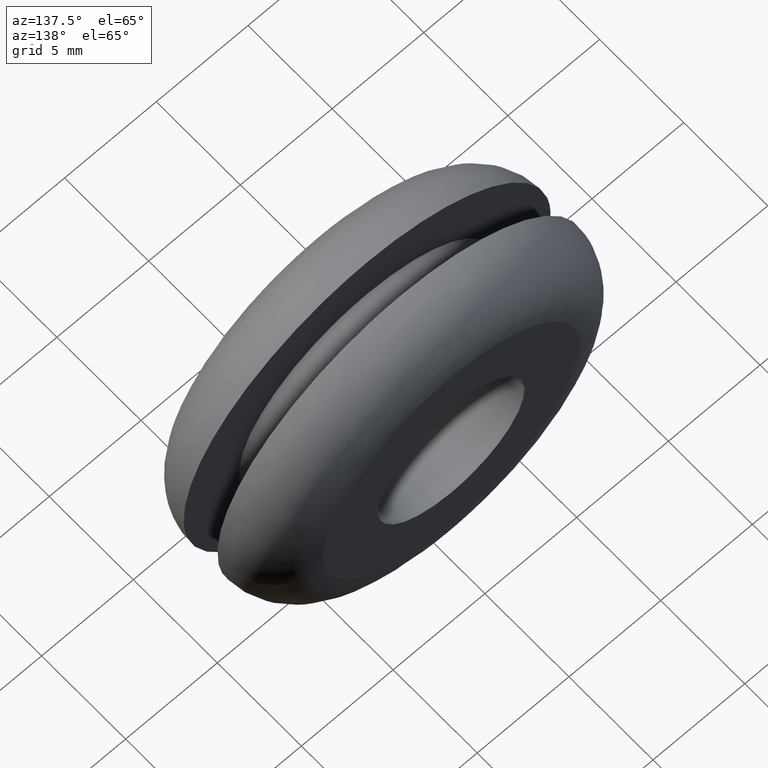
[diagram: clean part render]
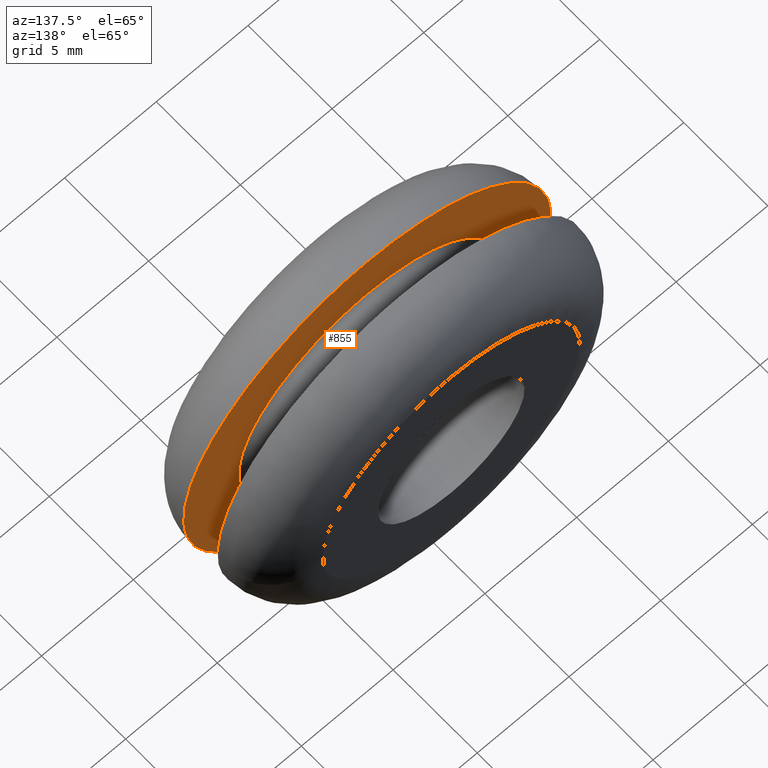
[diagram: same view with one face highlighted and labeled with its STEP entity id]
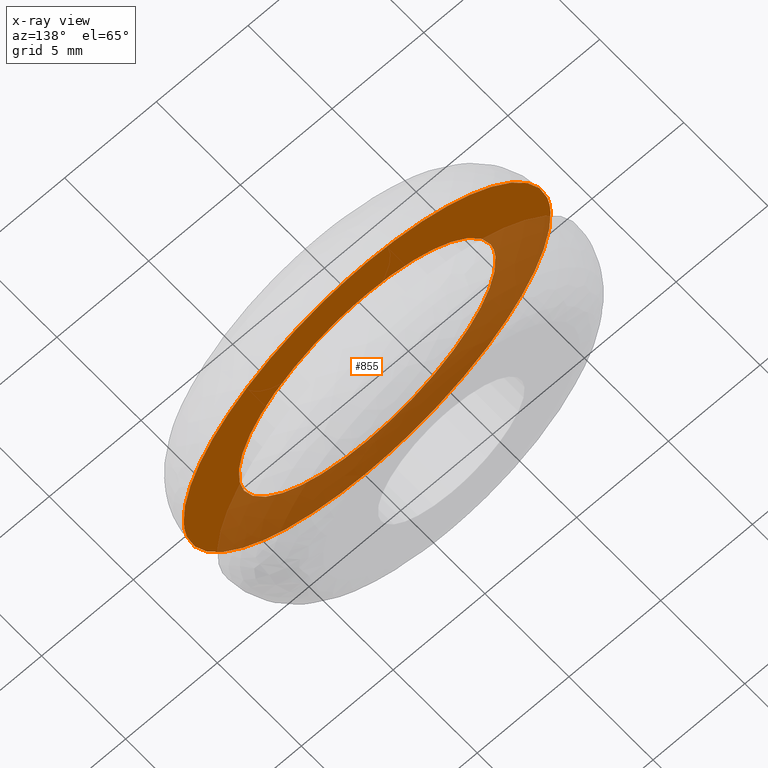
[diagram: x-ray of the same camera — body ghosted, the highlighted face saturated]
A machine part, auxiliary view. The second image highlights one B-rep face of the part: STEP entity #855.
The next image is the same camera in x-ray: the body ghosted, the highlighted face saturated — about 47% of this face is hidden behind the body in this view.
In plain terms, the highlighted face is a freeform B-spline surface patch.
Its self-contained STEP definition (entity closure, byte-faithful):
#66=CARTESIAN_POINT('',(6.951067166005178,2.999999999999949,-0.826235592109230));
#67=VERTEX_POINT('',#66);
#68=CARTESIAN_POINT('',(0.0,3.0,7.0));
#69=VERTEX_POINT('',#68);
#70=CARTESIAN_POINT('',(6.951067166005178,2.999999999999950,-0.826235592109230));
#71=CARTESIAN_POINT('',(7.0,3.000000000000000,-0.414566790908887));
#72=CARTESIAN_POINT('',(7.0,3.0,-1.836910E-016));
#73=CARTESIAN_POINT('',(6.999999999999999,3.000000000000000,6.999999999999999));
#74=CARTESIAN_POINT('',(0.0,3.0,7.0));
#82=(BOUNDED_CURVE()B_SPLINE_CURVE(2,(#70,#71,#72,#73,#74),.UNSPECIFIED.,.F.,.U.)B_SPLINE_CURVE_WITH_KNOTS((3,2,3),(0.229562571996310,0.250000000000000,0.500000000000000),.UNSPECIFIED.)CURVE()GEOMETRIC_REPRESENTATION_ITEM()RATIONAL_B_SPLINE_CURVE((0.956026947214111,0.976056063710924,1.0,0.707106781186547,1.0))REPRESENTATION_ITEM(''));
#83=EDGE_CURVE('',#67,#69,#82,.T.);
#124=CARTESIAN_POINT('',(-6.986943971456531,3.000000000000065,0.427333522775779));
#125=VERTEX_POINT('',#124);
#131=CARTESIAN_POINT('',(0.0,3.0,7.0));
#132=CARTESIAN_POINT('',(-6.584948373495934,2.999999999999999,6.999999999999999));
#133=CARTESIAN_POINT('',(-6.986943971456531,3.000000000000065,0.427333522775779));
#141=(BOUNDED_CURVE()B_SPLINE_CURVE(2,(#131,#132,#133),.UNSPECIFIED.,.F.,.U.)B_SPLINE_CURVE_WITH_KNOTS((3,3),(0.500000000000000,0.739333116687507),.UNSPECIFIED.)CURVE()GEOMETRIC_REPRESENTATION_ITEM()RATIONAL_B_SPLINE_CURVE((1.0,0.719603812338962,0.976072372679614))REPRESENTATION_ITEM(''));
#142=EDGE_CURVE('',#69,#125,#141,.T.);
#165=CARTESIAN_POINT('',(0.0,3.0,-7.0));
#166=VERTEX_POINT('',#165);
#167=CARTESIAN_POINT('',(0.0,3.0,-7.0));
#168=CARTESIAN_POINT('',(6.217225330029973,3.000000000000001,-6.999999999999999));
#169=CARTESIAN_POINT('',(6.951067166005178,2.999999999999950,-0.826235592109230));
#177=(BOUNDED_CURVE()B_SPLINE_CURVE(2,(#167,#168,#169),.UNSPECIFIED.,.F.,.U.)B_SPLINE_CURVE_WITH_KNOTS((3,3),(0.0,0.229562571996310),.UNSPECIFIED.)CURVE()GEOMETRIC_REPRESENTATION_ITEM()RATIONAL_B_SPLINE_CURVE((1.0,0.731050717475624,0.956026947214111))REPRESENTATION_ITEM(''));
#178=EDGE_CURVE('',#166,#67,#177,.T.);
#180=CARTESIAN_POINT('',(-6.986943971456531,3.000000000000065,0.427333522775779));
#181=CARTESIAN_POINT('',(-7.000000000000001,3.000000000000000,0.213866207338468));
#182=CARTESIAN_POINT('',(-7.0,3.0,-1.836910E-016));
#183=CARTESIAN_POINT('',(-6.999999999999999,3.000000000000000,-6.999999999999999));
#184=CARTESIAN_POINT('',(0.0,3.0,-7.0));
#192=(BOUNDED_CURVE()B_SPLINE_CURVE(2,(#180,#181,#182,#183,#184),.UNSPECIFIED.,.F.,.U.)B_SPLINE_CURVE_WITH_KNOTS((3,2,3),(0.739333116687507,0.750000000000000,1.0),.UNSPECIFIED.)CURVE()GEOMETRIC_REPRESENTATION_ITEM()RATIONAL_B_SPLINE_CURVE((0.976072372679614,0.987502968847585,1.0,0.707106781186547,1.0))REPRESENTATION_ITEM(''));
#193=EDGE_CURVE('',#125,#166,#192,.T.);
#443=CARTESIAN_POINT('',(-9.996841892832897,2.999999999971457,0.251300954437361));
#444=VERTEX_POINT('',#443);
#445=CARTESIAN_POINT('',(0.0,3.0,-10.0));
#446=VERTEX_POINT('',#445);
#447=CARTESIAN_POINT('',(-9.996841892832897,2.999999999971457,0.251300954437361));
#448=CARTESIAN_POINT('',(-10.000000000000002,3.000000000000000,0.125670321237784));
#449=CARTESIAN_POINT('',(-10.0,3.0,-1.836910E-016));
#450=CARTESIAN_POINT('',(-10.000000000000002,3.0,-10.000000000000002));
#451=CARTESIAN_POINT('',(0.0,3.0,-10.0));
#459=(BOUNDED_CURVE()B_SPLINE_CURVE(2,(#447,#448,#449,#450,#451),.UNSPECIFIED.,.F.,.U.)B_SPLINE_CURVE_WITH_KNOTS((3,2,3),(0.745579891769668,0.750000000000000,1.0),.UNSPECIFIED.)CURVE()GEOMETRIC_REPRESENTATION_ITEM()RATIONAL_B_SPLINE_CURVE((0.989826157681261,0.994821521091657,1.0,0.707106781186548,1.0))REPRESENTATION_ITEM(''));
#460=EDGE_CURVE('',#444,#446,#459,.T.);
#462=CARTESIAN_POINT('',(9.996841892832897,2.999999999971457,-0.251300954437362));
#463=VERTEX_POINT('',#462);
#464=CARTESIAN_POINT('',(0.0,3.0,-10.0));
#465=CARTESIAN_POINT('',(9.751778761798706,3.000000000000000,-10.0));
#466=CARTESIAN_POINT('',(9.996841892832897,2.999999999971457,-0.251300954437362));
#474=(BOUNDED_CURVE()B_SPLINE_CURVE(2,(#464,#465,#466),.UNSPECIFIED.,.F.,.U.)B_SPLINE_CURVE_WITH_KNOTS((3,3),(0.0,0.245579891769668),.UNSPECIFIED.)CURVE()GEOMETRIC_REPRESENTATION_ITEM()RATIONAL_B_SPLINE_CURVE((1.0,0.712285260094891,0.989826157681261))REPRESENTATION_ITEM(''));
#475=EDGE_CURVE('',#446,#463,#474,.T.);
#563=CARTESIAN_POINT('',(0.0,3.0,10.0));
#564=VERTEX_POINT('',#563);
#565=CARTESIAN_POINT('',(0.0,3.0,10.0));
#566=CARTESIAN_POINT('',(-9.751778761798668,3.0,10.000000000000002));
#567=CARTESIAN_POINT('',(-9.996841892832897,2.999999999971457,0.251300954437361));
#575=(BOUNDED_CURVE()B_SPLINE_CURVE(2,(#565,#566,#567),.UNSPECIFIED.,.F.,.U.)B_SPLINE_CURVE_WITH_KNOTS((3,3),(0.500000000000000,0.745579891769667),.UNSPECIFIED.)CURVE()GEOMETRIC_REPRESENTATION_ITEM()RATIONAL_B_SPLINE_CURVE((1.0,0.712285260094892,0.989826157681259))REPRESENTATION_ITEM(''));
#576=EDGE_CURVE('',#564,#444,#575,.T.);
#610=CARTESIAN_POINT('',(9.996841892832897,2.999999999971457,-0.251300954437362));
#611=CARTESIAN_POINT('',(10.0,3.000000000000000,-0.125670321237785));
#612=CARTESIAN_POINT('',(10.0,3.0,-1.836910E-016));
#613=CARTESIAN_POINT('',(10.000000000000002,3.0,10.000000000000002));
#614=CARTESIAN_POINT('',(0.0,3.0,10.0));
#622=(BOUNDED_CURVE()B_SPLINE_CURVE(2,(#610,#611,#612,#613,#614),.UNSPECIFIED.,.F.,.U.)B_SPLINE_CURVE_WITH_KNOTS((3,2,3),(0.245579891769668,0.250000000000000,0.500000000000000),.UNSPECIFIED.)CURVE()GEOMETRIC_REPRESENTATION_ITEM()RATIONAL_B_SPLINE_CURVE((0.989826157681261,0.994821521091657,1.0,0.707106781186548,1.0))REPRESENTATION_ITEM(''));
#623=EDGE_CURVE('',#463,#564,#622,.T.);
#838=CARTESIAN_POINT('',(-10.995525912370990,3.0,10.998999961236120));
#839=CARTESIAN_POINT('',(-10.995525912370990,3.0,-10.999000497677921));
#840=CARTESIAN_POINT('',(10.995525376098600,3.0,10.998999961236120));
#841=CARTESIAN_POINT('',(10.995525376098600,3.0,-10.999000497677921));
#842=B_SPLINE_SURFACE_WITH_KNOTS('',1,1,((#838,#840),(#839,#841)),.UNSPECIFIED.,.F.,.F.,.U.,(2,2),(2,2),(0.0,21.998000458914039),(0.0,21.991051288469588),.UNSPECIFIED.);
#843=ORIENTED_EDGE('',*,*,#460,.F.);
#844=ORIENTED_EDGE('',*,*,#576,.F.);
#845=ORIENTED_EDGE('',*,*,#623,.F.);
#846=ORIENTED_EDGE('',*,*,#475,.F.);
#847=EDGE_LOOP('',(#843,#844,#845,#846));
#848=FACE_OUTER_BOUND('',#847,.T.);
#849=ORIENTED_EDGE('',*,*,#142,.T.);
#850=ORIENTED_EDGE('',*,*,#193,.T.);
#851=ORIENTED_EDGE('',*,*,#178,.T.);
#852=ORIENTED_EDGE('',*,*,#83,.T.);
#853=EDGE_LOOP('',(#849,#850,#851,#852));
#854=FACE_BOUND('',#853,.T.);
#855=ADVANCED_FACE('',(#848,#854),#842,.F.);